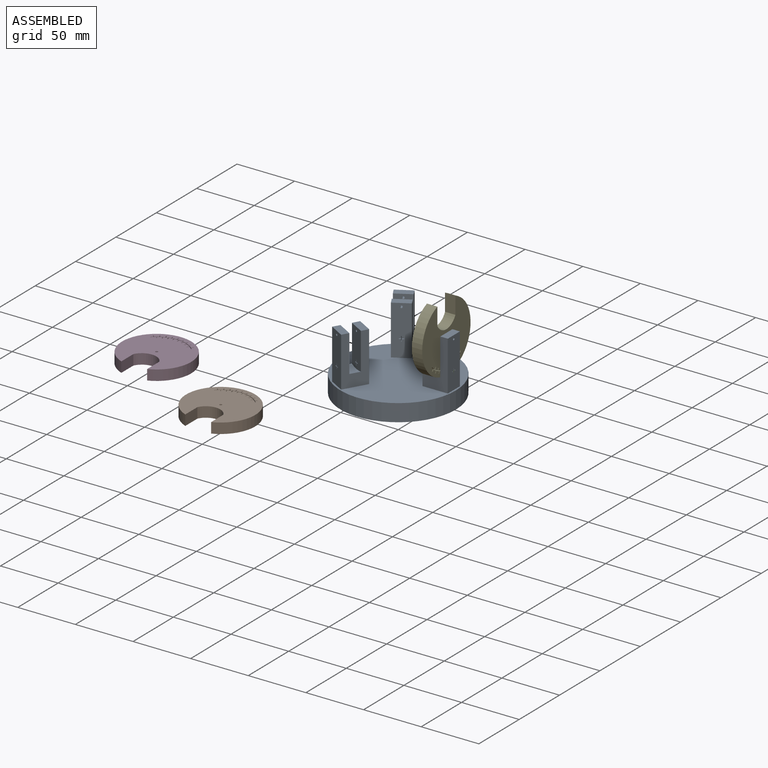
[diagram: assembled view]
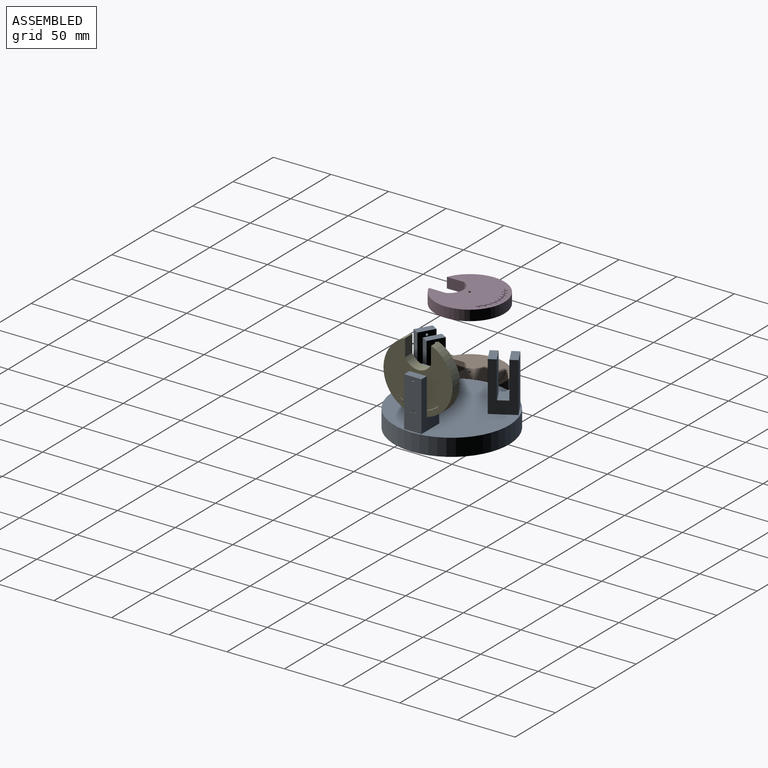
[diagram: assembled view, second angle]
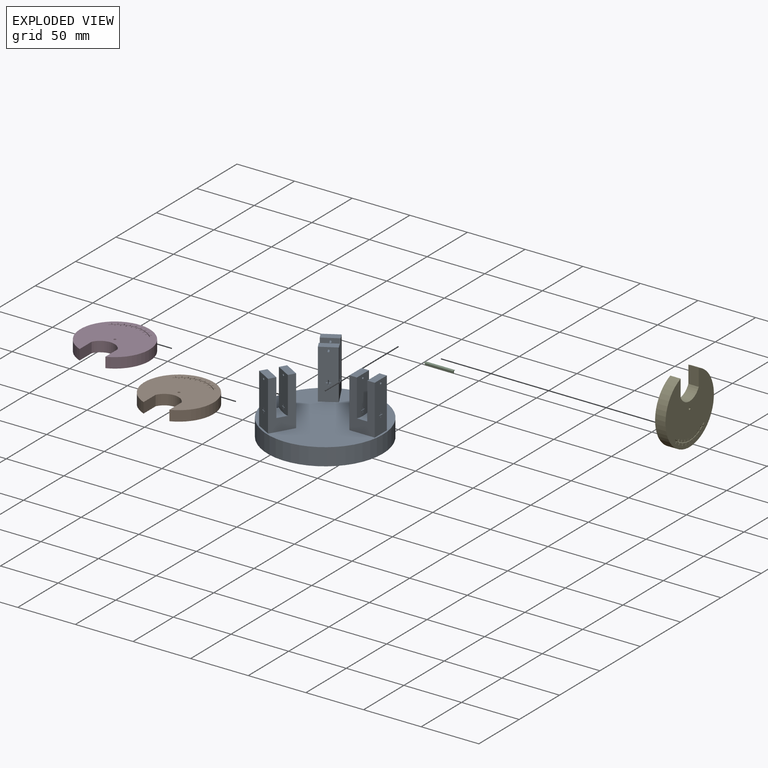
[diagram: exploded view]
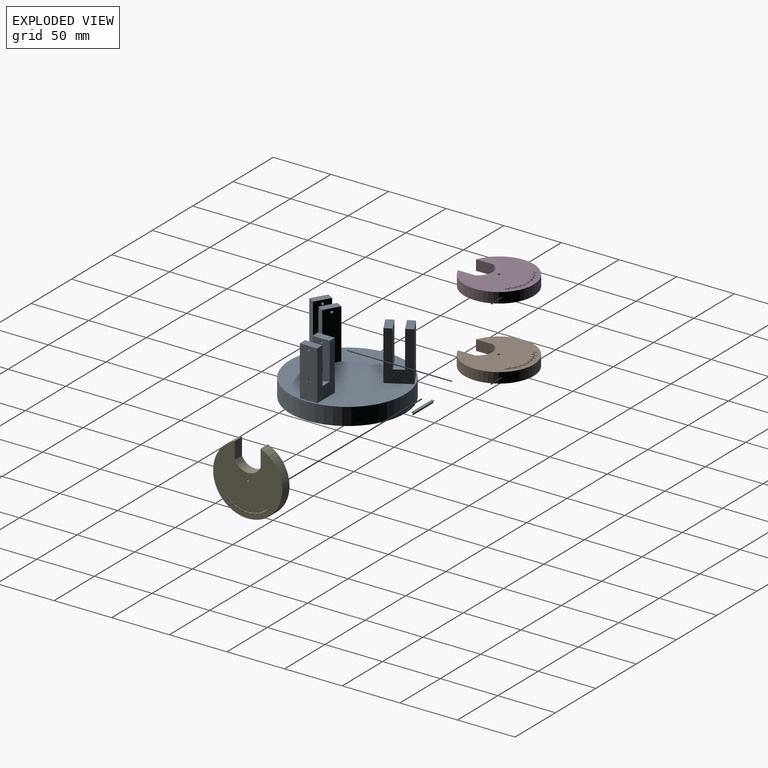
[diagram: exploded view, second angle]
ASSEMBLY  parts=5 mates=2
PART A: 108 faces, bbox 100x100x58 mm
  f0: plane 43x15mm, normal (1,0,0), area 637.9mm2, adj f16,f17,f18,f27,f82,f83,f84,f85
  f1: plane 43x15mm, normal (-1,0,0), area 637.9mm2, adj f16,f17,f18,f26,f95,f96,f97,f98
  f2: plane 33x15mm, normal (1,0,0), area 483.2mm2, adj f17,f18,f22,f26,f95,f96,f97,f98
  f3: plane 33x15mm, normal (-1,0,0), area 483.2mm2, adj f17,f18,f22,f27,f82,f83,f84,f85
  f4: plane 43x12.99mm, normal (-0.5,-0.87,0), area 637.9mm2, adj f16,f19,f20,f28,f56,f57,f58,f59
  f5: plane 43x12.99mm, normal (0.5,0.87,0), area 637.9mm2, adj f16,f19,f20,f29,f69,f70,f71,f72
  f6: plane 33x12.99mm, normal (-0.5,-0.87,0), area 483.2mm2, adj f19,f20,f23,f29,f69,f70,f71,f72
  f7: plane 33x12.99mm, normal (0.5,0.87,0), area 483.2mm2, adj f19,f20,f23,f28,f56,f57,f58,f59
  f8: plane 43x12.99mm, normal (-0.5,0.87,0), area 637.9mm2, adj f12,f13,f16,f24,f30,f31,f32,f33
  f9: plane 43x12.99mm, normal (0.5,-0.87,0), area 637.9mm2, adj f12,f13,f16,f25,f43,f44,f45,f46
  f10: plane 33x12.99mm, normal (-0.5,0.87,0), area 483.2mm2, adj f12,f13,f21,f25,f43,f44,f45,f46
  f11: plane 33x12.99mm, normal (0.5,-0.87,0), area 483.2mm2, adj f12,f13,f21,f24,f30,f31,f32,f33
  f12: plane 43x19.05mm, normal (0.87,0.5,0), area 657.6mm2, adj f8,f9,f10,f11,f16,f21,f24,f25
  f13: plane 43x19.05mm, normal (-0.87,-0.5,0), area 657.6mm2, adj f8,f9,f10,f11,f16,f21,f24,f25
  f14: cylinder r=50mm len=100mm, axis (0,0,1), area 4712.4mm2, adj f15,f16
  f15: plane 100x100mm, normal (0,0,-1), area 7854mm2, adj f14
  f16: plane 100x100mm, normal (0,0,1), area 6864mm2, adj f0,f1,f4,f5,f8,f9,f12,f13
  f17: plane 43x22mm, normal (0,-1,0), area 657.6mm2, adj f0,f1,f2,f3,f16,f22,f26,f27
  f18: plane 43x22mm, normal (0,1,0), area 657.6mm2, adj f0,f1,f2,f3,f16,f22,f26,f27
  f19: plane 43x19.05mm, normal (-0.87,0.5,0), area 657.6mm2, adj f4,f5,f6,f7,f16,f23,f28,f29
  f20: plane 43x19.05mm, normal (0.87,-0.5,0), area 657.6mm2, adj f4,f5,f6,f7,f16,f23,f28,f29
  f21: cylinder r=30mm len=17.49mm, axis (0.5,-0.87,0), area 136.4mm2, adj f10,f11,f12,f13
  f22: cylinder r=30mm len=15mm, axis (1,0,0), area 136.4mm2, adj f2,f3,f17,f18
  f23: cylinder r=30mm len=17.49mm, axis (-0.5,-0.87,0), area 136.4mm2, adj f6,f7,f19,f20
  f24: plane 16.24x13.13mm, normal (0,0,1), area 97.5mm2, adj f8,f11,f12,f13
  f25: plane 16.24x13.13mm, normal (0,0,1), area 97.5mm2, adj f9,f10,f12,f13
  f26: plane 15x6.5mm, normal (0,0,1), area 97.5mm2, adj f1,f2,f17,f18
  f27: plane 15x6.5mm, normal (0,0,1), area 97.5mm2, adj f0,f3,f17,f18
  f28: plane 16.24x13.13mm, normal (0,0,1), area 97.5mm2, adj f4,f7,f19,f20
  f29: plane 16.24x13.13mm, normal (0,0,1), area 97.5mm2, adj f5,f6,f19,f20
  f30: cylinder r=0.25mm len=5.88mm, axis (-0.5,0.87,0), area 5.1mm2, adj f8,f11,f31,f41
  f31: plane 5.63x3.25mm, normal (-0.87,-0.5,0), area 11.4mm2, adj f8,f11,f30,f32
  f32: plane 6.39x4.57mm, normal (0,0,1), area 9.9mm2, adj f8,f11,f31,f33
  f33: cylinder r=0.25mm len=5.75mm, axis (-0.5,0.87,0), area 5.1mm2, adj f8,f11,f32,f34
  f34: plane 6.39x4.57mm, normal (0,0,-1), area 9.9mm2, adj f8,f11,f33,f35
  f35: plane 5.63x3.25mm, normal (-0.87,-0.5,0), area 11.4mm2, adj f8,f11,f34,f36
  f36: cylinder r=0.25mm len=5.88mm, axis (-0.5,0.87,0), area 5.1mm2, adj f8,f11,f35,f37
  f37: plane 5.63x3.25mm, normal (0.87,0.5,0), area 11.4mm2, adj f8,f11,f36,f38
  f38: plane 6.39x4.57mm, normal (0,0,-1), area 9.9mm2, adj f8,f11,f37,f39
  f39: cylinder r=0.25mm len=5.75mm, axis (-0.5,0.87,0), area 5.1mm2, adj f8,f11,f38,f40
  f40: plane 6.39x4.57mm, normal (0,0,1), area 9.9mm2, adj f8,f11,f39,f41
  f41: plane 5.63x3.25mm, normal (0.87,0.5,0), area 11.4mm2, adj f8,f11,f30,f40
  f42: cylinder r=1mm len=6.63mm, axis (-0.5,0.87,0), area 40.8mm2, adj f8,f11
  f43: plane 5.63x3.25mm, normal (0.87,0.5,0), area 11.4mm2, adj f9,f10,f44,f54
  f44: plane 6.39x4.57mm, normal (0,0,1), area 9.9mm2, adj f9,f10,f43,f45
  f45: cylinder r=0.25mm len=5.75mm, axis (-0.5,0.87,0), area 5.1mm2, adj f9,f10,f44,f46
  f46: plane 6.39x4.57mm, normal (0,0,-1), area 9.9mm2, adj f9,f10,f45,f47
  f47: plane 5.63x3.25mm, normal (0.87,0.5,0), area 11.4mm2, adj f9,f10,f46,f48
  f48: cylinder r=0.25mm len=5.88mm, axis (-0.5,0.87,0), area 5.1mm2, adj f9,f10,f47,f49
  f49: plane 5.63x3.25mm, normal (-0.87,-0.5,0), area 11.4mm2, adj f9,f10,f48,f50
  f50: plane 6.39x4.57mm, normal (0,0,-1), area 9.9mm2, adj f9,f10,f49,f51
  f51: cylinder r=0.25mm len=5.75mm, axis (-0.5,0.87,0), area 5.1mm2, adj f9,f10,f50,f52
  f52: plane 6.39x4.57mm, normal (0,0,1), area 9.9mm2, adj f9,f10,f51,f53
  f53: plane 5.63x3.25mm, normal (-0.87,-0.5,0), area 11.4mm2, adj f9,f10,f52,f54
  f54: cylinder r=0.25mm len=5.88mm, axis (-0.5,0.87,0), area 5.1mm2, adj f9,f10,f43,f53
  f55: cylinder r=1mm len=6.63mm, axis (-0.5,0.87,0), area 40.8mm2, adj f9,f10
  f56: cylinder r=0.25mm len=5.88mm, axis (-0.5,-0.87,0), area 5.1mm2, adj f4,f7,f57,f67
  f57: plane 5.63x3.25mm, normal (0.87,-0.5,0), area 11.4mm2, adj f4,f7,f56,f58
  f58: plane 6.39x4.57mm, normal (0,0,1), area 9.9mm2, adj f4,f7,f57,f59
  f59: cylinder r=0.25mm len=5.75mm, axis (-0.5,-0.87,0), area 5.1mm2, adj f4,f7,f58,f60
  f60: plane 6.39x4.57mm, normal (0,0,-1), area 9.9mm2, adj f4,f7,f59,f61
  f61: plane 5.63x3.25mm, normal (0.87,-0.5,0), area 11.4mm2, adj f4,f7,f60,f62
  f62: cylinder r=0.25mm len=5.88mm, axis (-0.5,-0.87,0), area 5.1mm2, adj f4,f7,f61,f63
  f63: plane 5.63x3.25mm, normal (-0.87,0.5,0), area 11.4mm2, adj f4,f7,f62,f64
  f64: plane 6.39x4.57mm, normal (0,0,-1), area 9.9mm2, adj f4,f7,f63,f65
  f65: cylinder r=0.25mm len=5.75mm, axis (-0.5,-0.87,0), area 5.1mm2, adj f4,f7,f64,f66
  f66: plane 6.39x4.57mm, normal (0,0,1), area 9.9mm2, adj f4,f7,f65,f67
  f67: plane 5.63x3.25mm, normal (-0.87,0.5,0), area 11.4mm2, adj f4,f7,f56,f66
  f68: cylinder r=1mm len=6.63mm, axis (-0.5,-0.87,0), area 40.8mm2, adj f4,f7
  f69: plane 5.63x3.25mm, normal (-0.87,0.5,0), area 11.4mm2, adj f5,f6,f70,f80
  f70: plane 6.39x4.57mm, normal (0,0,1), area 9.9mm2, adj f5,f6,f69,f71
  f71: cylinder r=0.25mm len=5.75mm, axis (-0.5,-0.87,0), area 5.1mm2, adj f5,f6,f70,f72
  f72: plane 6.39x4.57mm, normal (0,0,-1), area 9.9mm2, adj f5,f6,f71,f73
  f73: plane 5.63x3.25mm, normal (-0.87,0.5,0), area 11.4mm2, adj f5,f6,f72,f74
  f74: cylinder r=0.25mm len=5.88mm, axis (-0.5,-0.87,0), area 5.1mm2, adj f5,f6,f73,f75
  f75: plane 5.63x3.25mm, normal (0.87,-0.5,0), area 11.4mm2, adj f5,f6,f74,f76
  f76: plane 6.39x4.57mm, normal (0,0,-1), area 9.9mm2, adj f5,f6,f75,f77
  f77: cylinder r=0.25mm len=5.75mm, axis (-0.5,-0.87,0), area 5.1mm2, adj f5,f6,f76,f78
  f78: plane 6.39x4.57mm, normal (0,0,1), area 9.9mm2, adj f5,f6,f77,f79
  f79: plane 5.63x3.25mm, normal (0.87,-0.5,0), area 11.4mm2, adj f5,f6,f78,f80
  f80: cylinder r=0.25mm len=5.88mm, axis (-0.5,-0.87,0), area 5.1mm2, adj f5,f6,f69,f79
  f81: cylinder r=1mm len=6.63mm, axis (-0.5,-0.87,0), area 40.8mm2, adj f5,f6
  f82: cylinder r=1mm len=6.5mm, axis (1,0,0), area 40.8mm2, adj f0,f3
  f83: cylinder r=0.25mm len=6.5mm, axis (1,0,0), area 5.1mm2, adj f0,f3,f84,f94
  f84: plane 6.5x1.75mm, normal (0,1,0), area 11.4mm2, adj f0,f3,f83,f85
  f85: plane 6.5x1.52mm, normal (0,0,1), area 9.9mm2, adj f0,f3,f84,f86
  f86: cylinder r=0.25mm len=6.5mm, axis (1,0,0), area 5.1mm2, adj f0,f3,f85,f87
  f87: plane 6.5x1.52mm, normal (0,0,-1), area 9.9mm2, adj f0,f3,f86,f88
  f88: plane 6.5x1.75mm, normal (0,1,0), area 11.4mm2, adj f0,f3,f87,f89
  f89: cylinder r=0.25mm len=6.5mm, axis (1,0,0), area 5.1mm2, adj f0,f3,f88,f90
  f90: plane 6.5x1.75mm, normal (0,-1,0), area 11.4mm2, adj f0,f3,f89,f91
  f91: plane 6.5x1.52mm, normal (0,0,-1), area 9.9mm2, adj f0,f3,f90,f92
  f92: cylinder r=0.25mm len=6.5mm, axis (1,0,0), area 5.1mm2, adj f0,f3,f91,f93
  f93: plane 6.5x1.52mm, normal (0,0,1), area 9.9mm2, adj f0,f3,f92,f94
  f94: plane 6.5x1.75mm, normal (0,-1,0), area 11.4mm2, adj f0,f3,f83,f93
  f95: cylinder r=1mm len=6.5mm, axis (1,0,0), area 40.8mm2, adj f1,f2
  f96: plane 6.5x1.75mm, normal (0,-1,0), area 11.4mm2, adj f1,f2,f97,f107
  f97: plane 6.5x1.52mm, normal (0,0,1), area 9.9mm2, adj f1,f2,f96,f98
  f98: cylinder r=0.25mm len=6.5mm, axis (1,0,0), area 5.1mm2, adj f1,f2,f97,f99
  f99: plane 6.5x1.52mm, normal (0,0,-1), area 9.9mm2, adj f1,f2,f98,f100
  f100: plane 6.5x1.75mm, normal (0,-1,0), area 11.4mm2, adj f1,f2,f99,f101
  f101: cylinder r=0.25mm len=6.5mm, axis (1,0,0), area 5.1mm2, adj f1,f2,f100,f102
  f102: plane 6.5x1.75mm, normal (0,1,0), area 11.4mm2, adj f1,f2,f101,f103
  f103: plane 6.5x1.52mm, normal (0,0,-1), area 9.9mm2, adj f1,f2,f102,f104
  f104: cylinder r=0.25mm len=6.5mm, axis (1,0,0), area 5.1mm2, adj f1,f2,f103,f105
  f105: plane 6.5x1.52mm, normal (0,0,1), area 9.9mm2, adj f1,f2,f104,f106
  f106: plane 6.5x1.75mm, normal (0,1,0), area 11.4mm2, adj f1,f2,f105,f107
  f107: cylinder r=0.25mm len=6.5mm, axis (1,0,0), area 5.1mm2, adj f1,f2,f96,f106
PART B: 79 faces, bbox 60x57.8x9 mm
  f0: plane 9x1.34mm, normal (-0.77,-0.64,0), area 15.8mm2, adj f1,f74,f77,f78
  f1: cylinder r=25.25mm len=9mm, axis (0,0,-1), area 35.2mm2, adj f0,f2,f77,f78
  f2: plane 9x1.52mm, normal (0.87,0.5,0), area 15.8mm2, adj f1,f3,f77,f78
  f3: cylinder r=0.25mm len=9mm, axis (0,0,-1), area 7.1mm2, adj f2,f4,f77,f78
  f4: plane 9x1.52mm, normal (-0.87,-0.5,0), area 15.8mm2, adj f3,f5,f77,f78
  f5: cylinder r=25.25mm len=9mm, axis (0,0,-1), area 35.2mm2, adj f4,f6,f77,f78
  f6: plane 9x1.65mm, normal (0.94,0.34,0), area 15.8mm2, adj f5,f7,f77,f78
  f7: cylinder r=0.25mm len=9mm, axis (0,0,-1), area 7.1mm2, adj f6,f8,f77,f78
  f8: plane 9x1.65mm, normal (-0.94,-0.34,0), area 15.8mm2, adj f7,f9,f77,f78
  f9: cylinder r=25.25mm len=9mm, axis (0,0,-1), area 35.2mm2, adj f8,f10,f77,f78
  f10: plane 9x1.72mm, normal (0.98,0.17,0), area 15.8mm2, adj f9,f11,f77,f78
  f11: cylinder r=0.25mm len=9mm, axis (0,0,-1), area 7.1mm2, adj f10,f12,f77,f78
  f12: plane 9x1.72mm, normal (-0.98,-0.17,0), area 15.8mm2, adj f11,f13,f77,f78
  f13: cylinder r=25.25mm len=9mm, axis (0,0,-1), area 35.2mm2, adj f12,f14,f77,f78
  f14: plane 9x1.75mm, normal (1,0,0), area 15.8mm2, adj f13,f15,f77,f78
  f15: cylinder r=0.25mm len=9mm, axis (0,0,-1), area 7.1mm2, adj f14,f16,f77,f78
  f16: plane 9x1.75mm, normal (-1,0,0), area 15.8mm2, adj f15,f17,f77,f78
  f17: cylinder r=25.25mm len=9mm, axis (0,0,-1), area 35.2mm2, adj f16,f18,f77,f78
  f18: plane 9x1.72mm, normal (0.98,-0.17,0), area 15.8mm2, adj f17,f19,f77,f78
  f19: cylinder r=0.25mm len=9mm, axis (0,0,-1), area 7.1mm2, adj f18,f20,f77,f78
  f20: plane 9x1.72mm, normal (-0.98,0.17,0), area 15.8mm2, adj f19,f21,f77,f78
  f21: cylinder r=25.25mm len=9mm, axis (0,0,-1), area 35.2mm2, adj f20,f22,f77,f78
  f22: plane 9x1.65mm, normal (0.94,-0.34,0), area 15.8mm2, adj f21,f23,f77,f78
  f23: cylinder r=0.25mm len=9mm, axis (0,0,-1), area 7.1mm2, adj f22,f24,f77,f78
  f24: plane 9x1.65mm, normal (-0.94,0.34,0), area 15.8mm2, adj f23,f25,f77,f78
  f25: cylinder r=25.25mm len=9mm, axis (0,0,-1), area 35.2mm2, adj f24,f26,f77,f78
  f26: plane 9x1.52mm, normal (0.87,-0.5,0), area 15.8mm2, adj f25,f27,f77,f78
  f27: cylinder r=0.25mm len=9mm, axis (0,0,-1), area 7.1mm2, adj f26,f28,f77,f78
  f28: plane 9x1.52mm, normal (-0.87,0.5,0), area 15.8mm2, adj f27,f29,f77,f78
  f29: cylinder r=25.25mm len=9mm, axis (0,0,-1), area 35.2mm2, adj f28,f30,f77,f78
  f30: plane 9x1.34mm, normal (0.77,-0.64,0), area 15.8mm2, adj f29,f31,f77,f78
  f31: cylinder r=0.25mm len=9mm, axis (0,0,-1), area 7.1mm2, adj f30,f32,f77,f78
  f32: plane 9x1.34mm, normal (-0.77,0.64,0), area 15.8mm2, adj f31,f33,f77,f78
  f33: cylinder r=25.25mm len=9mm, axis (0,0,-1), area 17.6mm2, adj f32,f34,f77,f78
  f34: cylinder r=0.25mm len=9mm, axis (0,0,-1), area 7.1mm2, adj f33,f35,f77,f78
  f35: cylinder r=24.75mm len=9mm, axis (0,0,-1), area 36.6mm2, adj f34,f36,f77,f78
  f36: plane 9x1.43mm, normal (-0.82,0.57,0), area 15.7mm2, adj f35,f37,f77,f78
  f37: cylinder r=0.25mm len=9mm, axis (0,0,-1), area 7.1mm2, adj f36,f38,f77,f78
  f38: plane 9x1.43mm, normal (0.82,-0.57,0), area 15.7mm2, adj f37,f39,f77,f78
  f39: cylinder r=24.75mm len=9mm, axis (0,0,-1), area 34.4mm2, adj f38,f40,f77,f78
  f40: plane 9x1.59mm, normal (-0.91,0.42,0), area 15.7mm2, adj f39,f41,f77,f78
  f41: cylinder r=0.25mm len=9mm, axis (0,0,-1), area 7.1mm2, adj f40,f42,f77,f78
  f42: plane 9x1.59mm, normal (0.91,-0.42,0), area 15.7mm2, adj f41,f43,f77,f78
  f43: cylinder r=24.75mm len=9mm, axis (0,0,-1), area 34.4mm2, adj f42,f44,f77,f78
  f44: plane 9x1.69mm, normal (-0.97,0.26,0), area 15.7mm2, adj f43,f45,f77,f78
  f45: cylinder r=0.25mm len=9mm, axis (0,0,-1), area 7.1mm2, adj f44,f46,f77,f78
  f46: plane 9x1.69mm, normal (0.97,-0.26,0), area 15.7mm2, adj f45,f47,f77,f78
  f47: cylinder r=24.75mm len=9mm, axis (0,0,-1), area 34.4mm2, adj f46,f48,f77,f78
  f48: plane 9x1.74mm, normal (-1,0.09,0), area 15.7mm2, adj f47,f49,f77,f78
  f49: cylinder r=0.25mm len=9mm, axis (0,0,-1), area 7.1mm2, adj f48,f50,f77,f78
  f50: plane 9x1.74mm, normal (1,-0.09,0), area 15.7mm2, adj f49,f51,f77,f78
  f51: cylinder r=24.75mm len=9mm, axis (0,0,-1), area 34.4mm2, adj f50,f52,f77,f78
  f52: plane 9x1.74mm, normal (-1,-0.09,0), area 15.7mm2, adj f51,f53,f77,f78
  f53: cylinder r=0.25mm len=9mm, axis (0,0,-1), area 7.1mm2, adj f52,f54,f77,f78
  f54: plane 9x1.74mm, normal (1,0.09,0), area 15.7mm2, adj f53,f55,f77,f78
  f55: cylinder r=24.75mm len=9mm, axis (0,0,-1), area 34.4mm2, adj f54,f56,f77,f78
  f56: plane 9x1.69mm, normal (-0.97,-0.26,0), area 15.7mm2, adj f55,f57,f77,f78
  f57: cylinder r=0.25mm len=9mm, axis (0,0,-1), area 7.1mm2, adj f56,f58,f77,f78
  f58: plane 9x1.69mm, normal (0.97,0.26,0), area 15.7mm2, adj f57,f59,f77,f78
  f59: cylinder r=24.75mm len=9mm, axis (0,0,-1), area 34.4mm2, adj f58,f60,f77,f78
  f60: plane 9x1.59mm, normal (-0.91,-0.42,0), area 15.7mm2, adj f59,f61,f77,f78
  f61: cylinder r=0.25mm len=9mm, axis (0,0,-1), area 7.1mm2, adj f60,f62,f77,f78
  f62: plane 9x1.59mm, normal (0.91,0.42,0), area 15.7mm2, adj f61,f63,f77,f78
  f63: cylinder r=24.75mm len=9mm, axis (0,0,-1), area 34.4mm2, adj f62,f64,f77,f78
  f64: plane 9x1.43mm, normal (-0.82,-0.57,0), area 15.7mm2, adj f63,f65,f77,f78
  f65: cylinder r=0.25mm len=9mm, axis (0,0,-1), area 7.1mm2, adj f64,f66,f77,f78
  f66: plane 9x1.43mm, normal (0.82,0.57,0), area 15.7mm2, adj f65,f67,f77,f78
  f67: cylinder r=24.75mm len=9mm, axis (0,0,-1), area 36.6mm2, adj f66,f68,f77,f78
  f68: cylinder r=0.25mm len=9mm, axis (0,0,-1), area 7.1mm2, adj f67,f69,f77,f78
  f69: cylinder r=25.25mm len=9mm, axis (0,0,-1), area 17.6mm2, adj f68,f70,f77,f78
  f70: plane 9x1.34mm, normal (0.77,0.64,0), area 15.8mm2, adj f69,f74,f77,f78
  f71: cylinder r=12.5mm len=22.43mm, axis (0,0,-1), area 250.6mm2, adj f72,f75,f77,f78
  f72: plane 15x9mm, normal (-1,0,0), area 135mm2, adj f71,f73,f77,f78
  f73: cylinder r=30mm len=60mm, axis (0,0,-1), area 1489.5mm2, adj f72,f75,f77,f78
  f74: cylinder r=0.25mm len=9mm, axis (0,0,-1), area 7.1mm2, adj f0,f70,f77,f78
  f75: plane 15x9mm, normal (1,0,0), area 135mm2, adj f71,f73,f77,f78
  f76: cylinder r=1mm len=9mm, axis (0,0,-1), area 56.5mm2, adj f77,f78
  f77: plane 60x57.82mm, normal (0,0,1), area 2306.5mm2, adj f0,f1,f2,f3,f4,f5,f6,f7
  f78: plane 60x57.82mm, normal (0,0,-1), area 2306.5mm2, adj f0,f1,f2,f3,f4,f5,f6,f7
PART C: 10 faces, bbox 2.5x2.5x25 mm
  f0: plane 25x2mm, normal (0,-1,0), area 50mm2, adj f1,f7,f8,f9
  f1: cylinder r=0.25mm len=25mm, axis (0,0,-1), area 19.6mm2, adj f0,f2,f8,f9
  f2: plane 25x0.75mm, normal (0,1,0), area 18.8mm2, adj f1,f3,f8,f9
  f3: plane 25x1.75mm, normal (1,0,0), area 43.8mm2, adj f2,f4,f8,f9
  f4: cylinder r=0.25mm len=25mm, axis (0,0,-1), area 19.6mm2, adj f3,f5,f8,f9
  f5: plane 25x1.75mm, normal (-1,0,0), area 43.7mm2, adj f4,f6,f8,f9
  f6: plane 25x0.75mm, normal (0,1,0), area 18.8mm2, adj f5,f7,f8,f9
  f7: cylinder r=0.25mm len=25mm, axis (0,0,-1), area 19.6mm2, adj f0,f6,f8,f9
  f8: plane 2.5x2.5mm, normal (0,0,1), area 2.2mm2, adj f0,f1,f2,f3,f4,f5,f6,f7
  f9: plane 2.5x2.5mm, normal (0,0,-1), area 2.2mm2, adj f0,f1,f2,f3,f4,f5,f6,f7
PART D: same geometry as B
PART E: same geometry as B
PLACE A t=(0,0,15)mm
PLACE B t=(-110.69,-80.23,-24.5)mm
PLACE C rot(axis=(-0.58,0.58,-0.58),120deg) t=(23.28,1,30)mm
PLACE D t=(-147.98,-106.27,17.07)mm
PLACE E rot(axis=(-0.58,0.58,-0.58),120deg) t=(32.78,0.01,73.34)mm
MATE revolute E.f73 <-> A.f22  axis (1,0,0) through (41.78,0,55)mm
MATE slider C.f4 <-> A.f83  axis (1,0,0) through (48.28,0,28)mm
